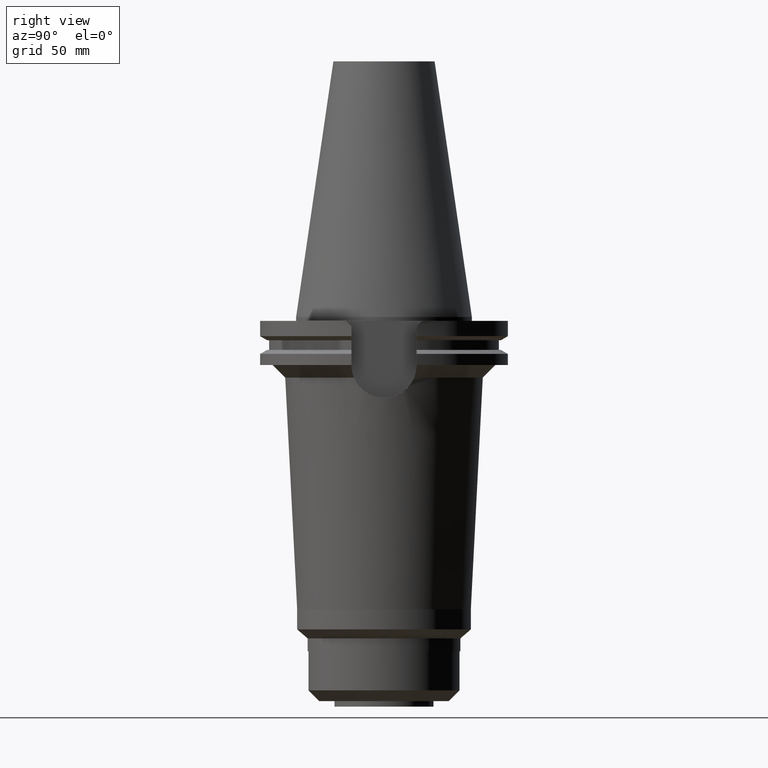
[diagram: clean part render]
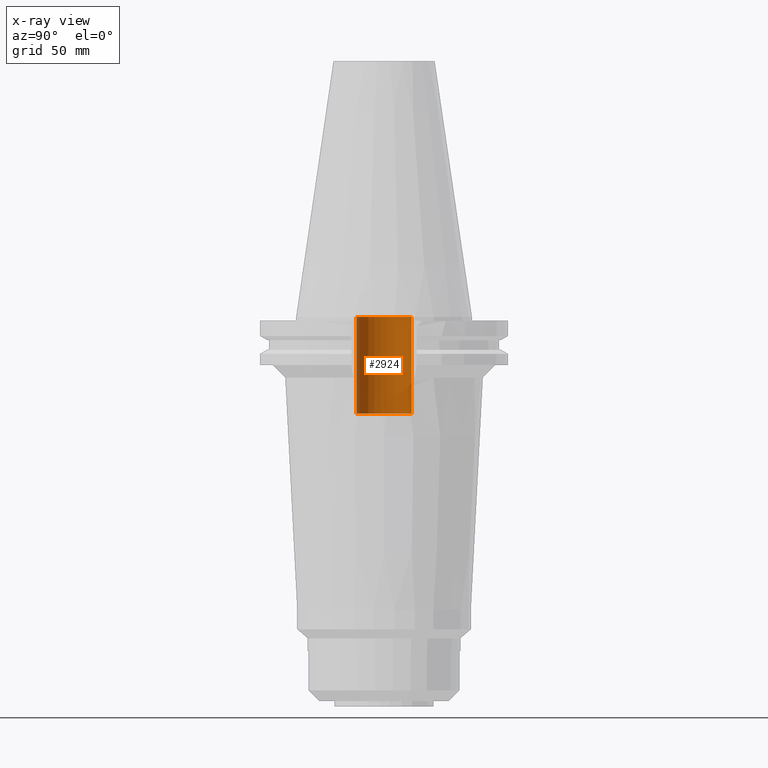
[diagram: x-ray — body ghosted, one internal face saturated and labeled with its STEP entity id]
A machine part, right view, then the same camera in x-ray: the body is ghosted and one INTERNAL B-rep face — a face not visible from any outside direction — is saturated and labeled: STEP entity #2924.
In plain terms, the highlighted cylindrical surface (edge-blend (fillet) strip) has radius 11 mm, axis along (0, 0, -1).
Its self-contained STEP definition (entity closure, byte-faithful):
#1422=CARTESIAN_POINT('',(0.E0,1.401240867584E-14,-3.84E1));
#1423=DIRECTION('',(0.E0,0.E0,-1.E0));
#1424=DIRECTION('',(0.E0,-1.E0,0.E0));
#1425=AXIS2_PLACEMENT_3D('',#1422,#1423,#1424);
#1454=DIRECTION('',(0.E0,0.E0,1.E0));
#1455=VECTOR('',#1454,3.84E1);
#1456=CARTESIAN_POINT('',(0.E0,-1.1E1,-3.84E1));
#1457=LINE('',#1456,#1455);
#1461=CARTESIAN_POINT('',(0.E0,1.401240867584E-14,-5.684341886081E-14));
#1462=DIRECTION('',(0.E0,0.E0,-1.E0));
#1463=DIRECTION('',(0.E0,-1.E0,0.E0));
#1464=AXIS2_PLACEMENT_3D('',#1461,#1462,#1463);
#1469=DIRECTION('',(0.E0,0.E0,1.E0));
#1470=VECTOR('',#1469,3.84E1);
#1471=CARTESIAN_POINT('',(0.E0,1.1E1,-3.84E1));
#1472=LINE('',#1471,#1470);
#1614=CARTESIAN_POINT('',(0.E0,1.1E1,-5.684341886081E-14));
#1615=VERTEX_POINT('',#1614);
#1616=CARTESIAN_POINT('',(0.E0,-1.1E1,-5.684341886081E-14));
#1617=VERTEX_POINT('',#1616);
#1618=CARTESIAN_POINT('',(0.E0,1.1E1,-3.84E1));
#1619=VERTEX_POINT('',#1618);
#1620=CARTESIAN_POINT('',(0.E0,-1.1E1,-3.84E1));
#1621=VERTEX_POINT('',#1620);
#2910=CARTESIAN_POINT('',(0.E0,1.401240867584E-14,1.1442E2));
#2911=DIRECTION('',(0.E0,0.E0,-1.E0));
#2912=DIRECTION('',(0.E0,-1.E0,0.E0));
#2913=AXIS2_PLACEMENT_3D('',#2910,#2911,#2912);
#2914=CYLINDRICAL_SURFACE('',#2913,1.1E1);
#2916=ORIENTED_EDGE('',*,*,#2915,.F.);
#2917=ORIENTED_EDGE('',*,*,#2899,.F.);
#2919=ORIENTED_EDGE('',*,*,#2918,.T.);
#2921=ORIENTED_EDGE('',*,*,#2920,.T.);
#2922=EDGE_LOOP('',(#2916,#2917,#2919,#2921));
#2923=FACE_OUTER_BOUND('',#2922,.F.);
#1426=CIRCLE('',#1425,1.1E1);
#1465=CIRCLE('',#1464,1.1E1);
#2899=EDGE_CURVE('',#1621,#1619,#1426,.T.);
#2915=EDGE_CURVE('',#1619,#1615,#1472,.T.);
#2918=EDGE_CURVE('',#1621,#1617,#1457,.T.);
#2920=EDGE_CURVE('',#1617,#1615,#1465,.T.);
#2924=ADVANCED_FACE('',(#2923),#2914,.F.);